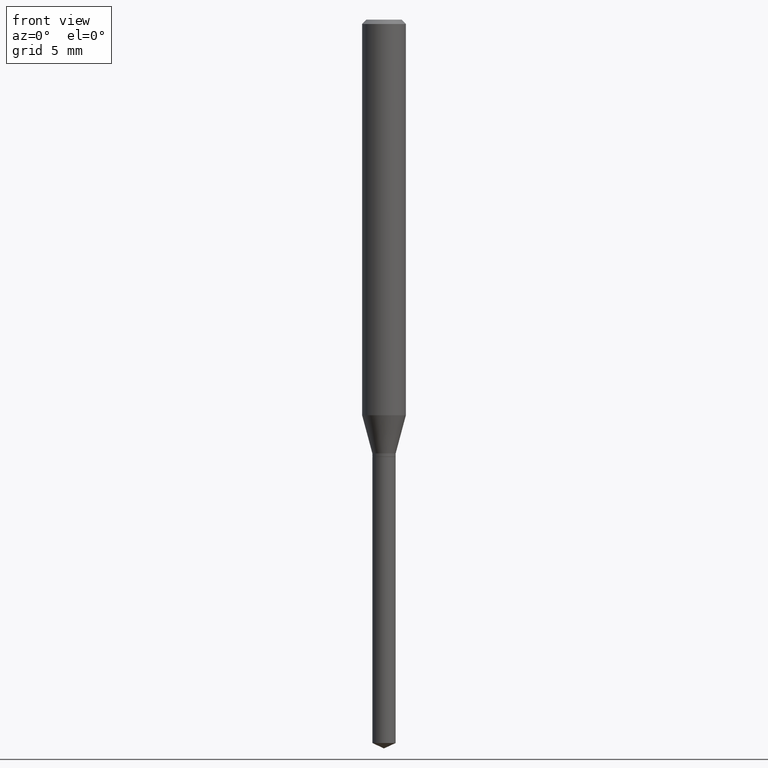
[diagram: clean part render]
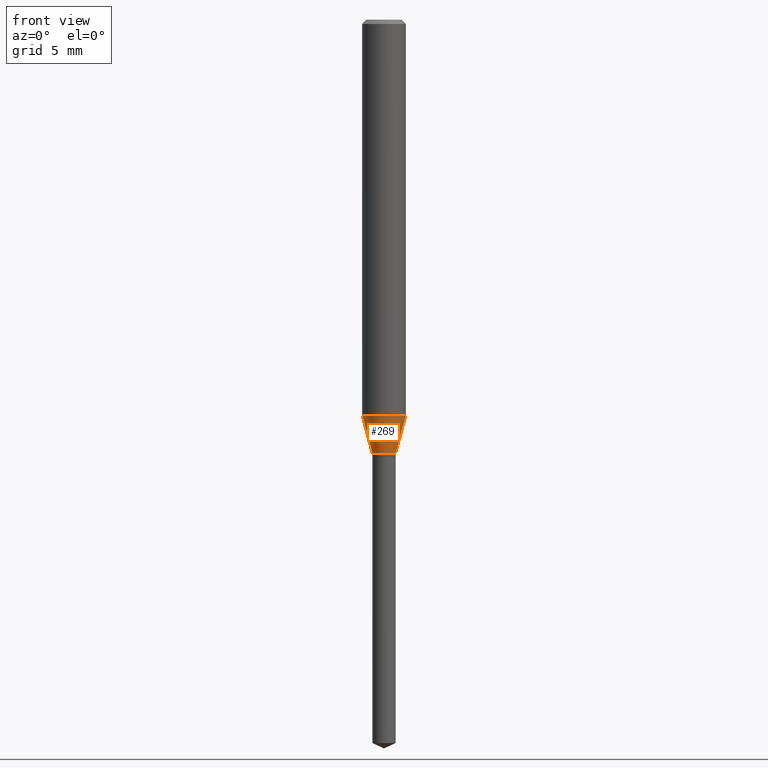
[diagram: same view with one face highlighted and labeled with its STEP entity id]
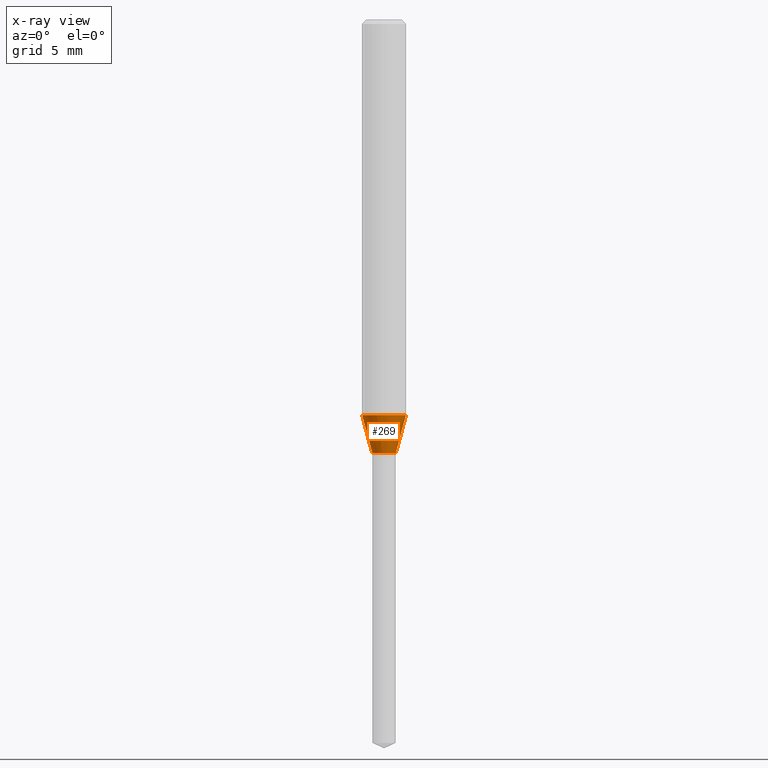
[diagram: x-ray of the same camera — body ghosted, the highlighted face saturated]
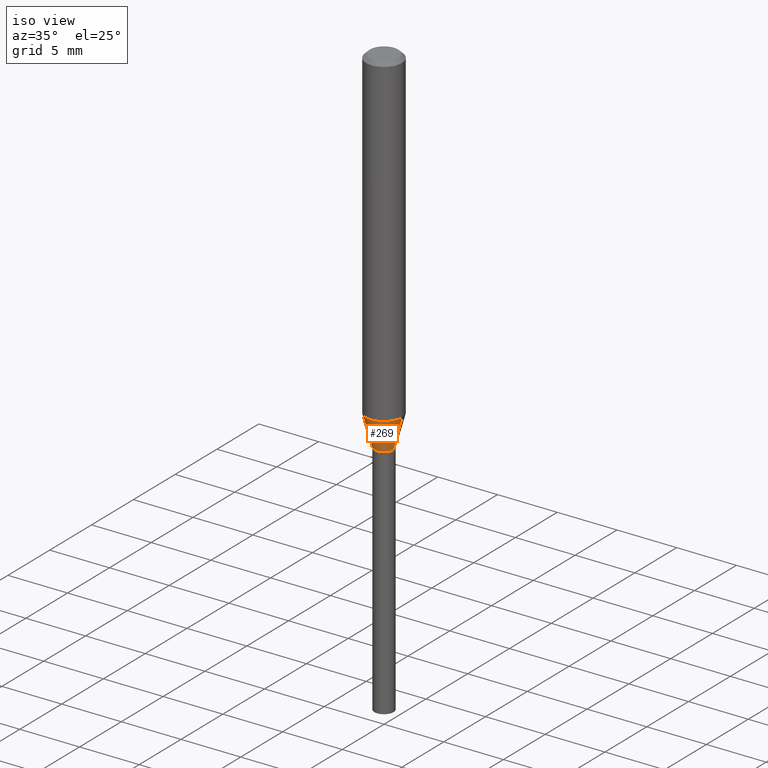
[diagram: same view with one face highlighted and labeled with its STEP entity id]
A machine part, front view. The second image highlights one B-rep face of the part: STEP entity #269.
The next image is the same camera in x-ray: the body ghosted, the highlighted face saturated — about 0% of this face is hidden behind the body in this view.
A second angle (iso view) of the same face is appended — the face is thin or edge-on in the first view.
In plain terms, the highlighted conical surface has half-angle 15 deg.
Its self-contained STEP definition (entity closure, byte-faithful):
#2 = CARTESIAN_POINT ( 'NONE',  ( 0.05905000000000011628, -4.143976355286858032E-15, -1.068782000251477182 ) ) ;
#11 = CONICAL_SURFACE ( 'NONE', #74, 0.03150000000000000716, 0.2617993877991501295 ) ;
#19 = DIRECTION ( 'NONE',  ( -2.445468806185136597E-29, 3.491481338843145583E-15, 1.000000000000000000 ) ) ;
#31 = CIRCLE ( 'NONE', #486, 0.03150000000000000716 ) ;
#45 = AXIS2_PLACEMENT_3D ( 'NONE', #120, #278, #436 ) ;
#64 = CARTESIAN_POINT ( 'NONE',  ( -0.03150000000000000716, -3.866798574824197516E-15, -1.171599999999999975 ) ) ;
#74 = AXIS2_PLACEMENT_3D ( 'NONE', #395, #19, #161 ) ;
#77 = EDGE_CURVE ( 'NONE', #297, #400, #414, .T. ) ;
#107 = VECTOR ( 'NONE', #165, 39.37007874015747433 ) ;
#120 = CARTESIAN_POINT ( 'NONE',  ( 2.613673042227141951E-29, -3.731632409169482323E-15, -1.068782000251477182 ) ) ;
#144 = LINE ( 'NONE', #456, #216 ) ;
#153 = VERTEX_POINT ( 'NONE', #2 ) ;
#161 = DIRECTION ( 'NONE',  ( 1.000000000000000000, -6.982962677686269077E-15, 0.000000000000000000 ) ) ;
#163 = CARTESIAN_POINT ( 'NONE',  ( 2.865111253326506133E-29, -4.090619536588628879E-15, -1.171599999999999975 ) ) ;
#165 = DIRECTION ( 'NONE',  ( -0.2588190451025214611, 5.211531920934551042E-15, 0.9659258262890682012 ) ) ;
#182 = EDGE_CURVE ( 'NONE', #444, #153, #144, .T. ) ;
#188 = DIRECTION ( 'NONE',  ( 0.2588190451025214611, 1.565188264969621573E-15, 0.9659258262890682012 ) ) ;
#191 = ORIENTED_EDGE ( 'NONE', *, *, #222, .F. ) ;
#195 = CARTESIAN_POINT ( 'NONE',  ( -0.03150000000000000716, -3.882510240848991048E-15, -1.171599999999999975 ) ) ;
#200 = DIRECTION ( 'NONE',  ( -2.445468806185136597E-29, 3.491481338843145583E-15, 1.000000000000000000 ) ) ;
#216 = VECTOR ( 'NONE', #188, 39.37007874015747433 ) ;
#220 = ORIENTED_EDGE ( 'NONE', *, *, #377, .T. ) ;
#222 = EDGE_CURVE ( 'NONE', #400, #153, #373, .T. ) ;
#269 = ADVANCED_FACE ( 'NONE', ( #429 ), #11, .T. ) ;
#278 = DIRECTION ( 'NONE',  ( -2.445468806185136597E-29, 3.491481338843145583E-15, 1.000000000000000000 ) ) ;
#297 = VERTEX_POINT ( 'NONE', #195 ) ;
#335 = CARTESIAN_POINT ( 'NONE',  ( -0.05905000000000011628, -3.312056923703143225E-15, -1.068782000251477182 ) ) ;
#338 = ORIENTED_EDGE ( 'NONE', *, *, #77, .F. ) ;
#367 = CARTESIAN_POINT ( 'NONE',  ( 0.03150000000000000716, -4.310582860935747006E-15, -1.171599999999999975 ) ) ;
#373 = CIRCLE ( 'NONE', #45, 0.05905000000000013016 ) ;
#377 = EDGE_CURVE ( 'NONE', #297, #444, #31, .T. ) ;
#382 = EDGE_LOOP ( 'NONE', ( #338, #220, #407, #191 ) ) ;
#395 = CARTESIAN_POINT ( 'NONE',  ( 2.865111253326506133E-29, -4.090619536588628879E-15, -1.171599999999999975 ) ) ;
#400 = VERTEX_POINT ( 'NONE', #335 ) ;
#407 = ORIENTED_EDGE ( 'NONE', *, *, #182, .T. ) ;
#414 = LINE ( 'NONE', #64, #107 ) ;
#429 = FACE_OUTER_BOUND ( 'NONE', #382, .T. ) ;
#436 = DIRECTION ( 'NONE',  ( 1.000000000000000000, -6.982962677686265133E-15, 0.000000000000000000 ) ) ;
#444 = VERTEX_POINT ( 'NONE', #367 ) ;
#456 = CARTESIAN_POINT ( 'NONE',  ( 0.03150000000000000716, -4.310582860935747006E-15, -1.171599999999999975 ) ) ;
#462 = DIRECTION ( 'NONE',  ( 1.000000000000000000, -6.982962677686269077E-15, 0.000000000000000000 ) ) ;
#486 = AXIS2_PLACEMENT_3D ( 'NONE', #163, #200, #462 ) ;